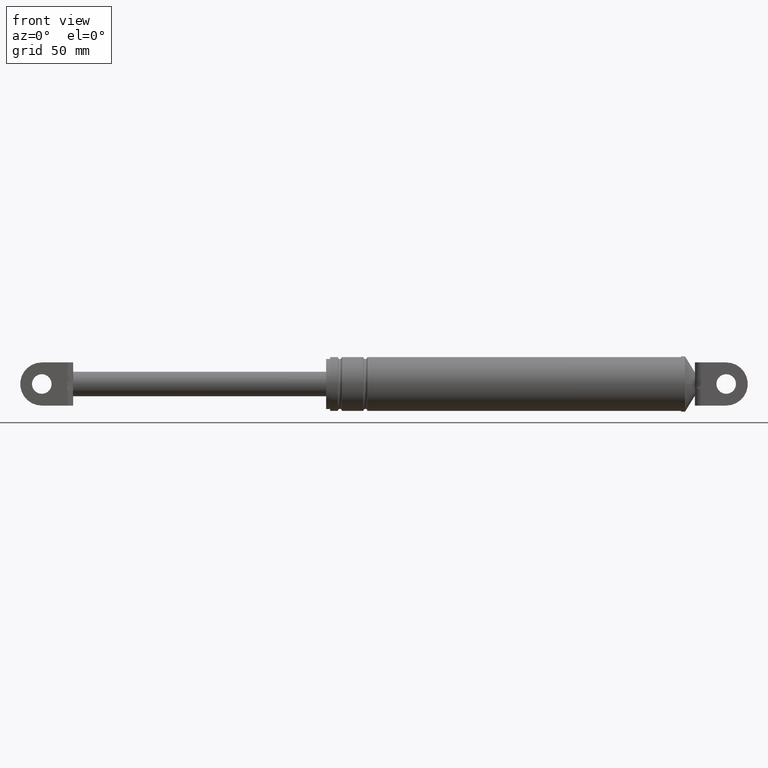
[diagram: clean part render]
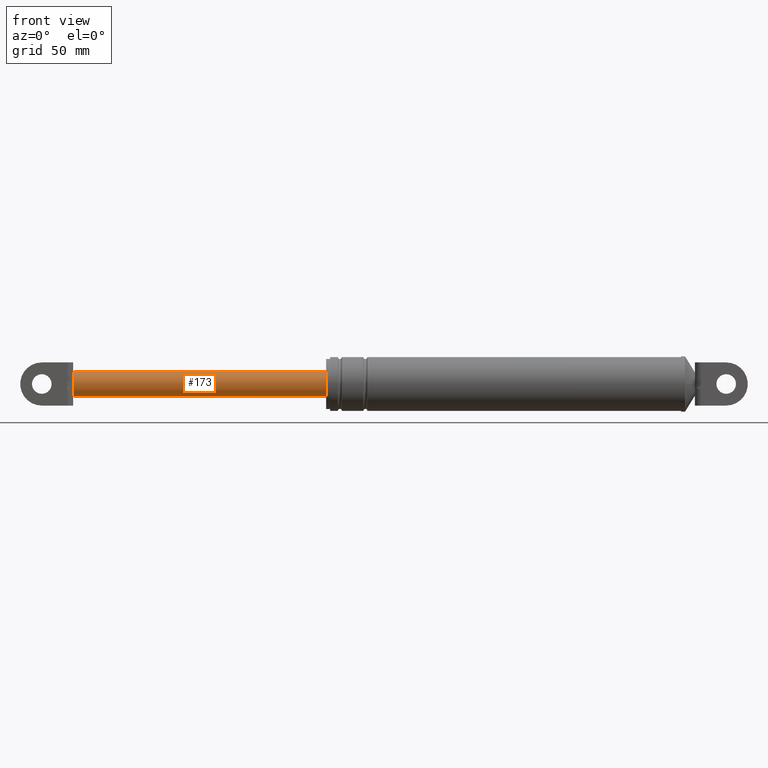
[diagram: same view with one face highlighted and labeled with its STEP entity id]
A machine part, front view. The second image highlights one B-rep face of the part: STEP entity #173.
In plain terms, the highlighted cylindrical surface (edge-blend (fillet) strip) has radius 6.25 mm, axis along (1, 0, 0).
Its self-contained STEP definition (entity closure, byte-faithful):
#173=ADVANCED_FACE('',(#797),#796,.T.);
#796=CYLINDRICAL_SURFACE('',#1384,6.25000000000E+000);
#797=FACE_OUTER_BOUND('',#1385,.T.);
#1381=CARTESIAN_POINT('',(0.00000000000E+000,0.00000000000E+000,1.77370805655E+002));
#1382=DIRECTION('',(1.00000000000E+000,-0.00000000000E+000,-0.00000000000E+000));
#1383=DIRECTION('',(-0.00000000000E+000,-0.00000000000E+000,-1.00000000000E+000));
#1384=AXIS2_PLACEMENT_3D('',#1381,#1382,#1383);
#1385=EDGE_LOOP('',(#1698,#1699,#1700,#1701,#1702,#1703));
#1698=ORIENTED_EDGE('',*,*,#1838,.F.);
#1699=ORIENTED_EDGE('',*,*,#1817,.F.);
#1700=ORIENTED_EDGE('',*,*,#1848,.F.);
#1701=ORIENTED_EDGE('',*,*,#1866,.T.);
#1702=ORIENTED_EDGE('',*,*,#1858,.T.);
#1703=ORIENTED_EDGE('',*,*,#1867,.F.);
#1817=EDGE_CURVE('',#2562,#2569,#2570,.T.);
#1838=EDGE_CURVE('',#2569,#2711,#2712,.T.);
#1848=EDGE_CURVE('',#2772,#2562,#2779,.T.);
#1858=EDGE_CURVE('',#2842,#2843,#2844,.T.);
#1866=EDGE_CURVE('',#2772,#2842,#2894,.T.);
#1867=EDGE_CURVE('',#2711,#2843,#2900,.T.);
#2562=VERTEX_POINT('',#3366);
#2569=VERTEX_POINT('',#3371);
#2570=CIRCLE('',#3375,6.25000000000E+000);
#2711=VERTEX_POINT('',#3468);
#2712=CIRCLE('',#3472,6.25000000000E+000);
#2772=VERTEX_POINT('',#3507);
#2779=CIRCLE('',#3515,6.25000000000E+000);
#2842=VERTEX_POINT('',#3547);
#2843=VERTEX_POINT('',#3548);
#2844=CIRCLE('',#3552,6.25000000000E+000);
#2894=(BOUNDED_CURVE() B_SPLINE_CURVE(1,(#3578,#3579),.UNSPECIFIED.,.F.,.F.) B_SPLINE_CURVE_WITH_KNOTS((2,2),(6.71140940856E-002,9.32885905909E-001),.UNSPECIFIED.) CURVE() GEOMETRIC_REPRESENTATION_ITEM() RATIONAL_B_SPLINE_CURVE((1.00000000000E+000,1.00000000000E+000)) REPRESENTATION_ITEM('') );
#2900=(BOUNDED_CURVE() B_SPLINE_CURVE(1,(#3580,#3581),.UNSPECIFIED.,.F.,.F.) B_SPLINE_CURVE_WITH_KNOTS((2,2),(6.71140939597E-002,9.32885906040E-001),.UNSPECIFIED.) CURVE() GEOMETRIC_REPRESENTATION_ITEM() RATIONAL_B_SPLINE_CURVE((7.50000000000E-001,7.50000000000E-001)) REPRESENTATION_ITEM('') );
#3366=CARTESIAN_POINT('',(4.62259114227E+001,-5.49999700000E+000,1.74402214575E+002));
#3371=CARTESIAN_POINT('',(4.62259114227E+001,-5.49999700000E+000,1.80339396735E+002));
#3372=CARTESIAN_POINT('',(4.62259114227E+001,0.00000000000E+000,1.77370805655E+002));
#3373=DIRECTION('',(-1.00000000000E+000,0.00000000000E+000,0.00000000000E+000));
#3374=DIRECTION('',(-0.00000000000E+000,-0.00000000000E+000,-1.00000000000E+000));
#3375=AXIS2_PLACEMENT_3D('',#3372,#3373,#3374);
#3468=CARTESIAN_POINT('',(4.62259114227E+001,7.89135251338E-007,1.83620805655E+002));
#3469=CARTESIAN_POINT('',(4.62259114227E+001,0.00000000000E+000,1.77370805655E+002));
#3470=DIRECTION('',(-1.00000000000E+000,0.00000000000E+000,0.00000000000E+000));
#3471=DIRECTION('',(-0.00000000000E+000,-0.00000000000E+000,-1.00000000000E+000));
#3472=AXIS2_PLACEMENT_3D('',#3469,#3470,#3471);
#3507=CARTESIAN_POINT('',(4.62259114227E+001,4.27327436247E-012,1.71120805655E+002));
#3512=CARTESIAN_POINT('',(4.62259114227E+001,0.00000000000E+000,1.77370805655E+002));
#3513=DIRECTION('',(-1.00000000000E+000,0.00000000000E+000,0.00000000000E+000));
#3514=DIRECTION('',(-0.00000000000E+000,8.79999520000E-001,-4.74974572793E-001));
#3515=AXIS2_PLACEMENT_3D('',#3512,#3513,#3514);
#3547=CARTESIAN_POINT('',(1.75225911423E+002,0.00000000000E+000,1.71120805655E+002));
#3548=CARTESIAN_POINT('',(1.75225911423E+002,0.00000000000E+000,1.83620805655E+002));
#3549=CARTESIAN_POINT('',(1.75225911423E+002,0.00000000000E+000,1.77370805655E+002));
#3550=DIRECTION('',(-1.00000000000E+000,0.00000000000E+000,0.00000000000E+000));
#3551=DIRECTION('',(0.00000000000E+000,-1.22460635382E-016,1.00000000000E+000));
#3552=AXIS2_PLACEMENT_3D('',#3549,#3550,#3551);
#3578=CARTESIAN_POINT('',(4.62259114414E+001,0.00000000000E+000,1.71120805655E+002));
#3579=CARTESIAN_POINT('',(1.75225911403E+002,0.00000000000E+000,1.71120805655E+002));
#3580=CARTESIAN_POINT('',(4.62259114227E+001,0.00000000000E+000,1.83620805655E+002));
#3581=CARTESIAN_POINT('',(1.75225911423E+002,0.00000000000E+000,1.83620805655E+002));